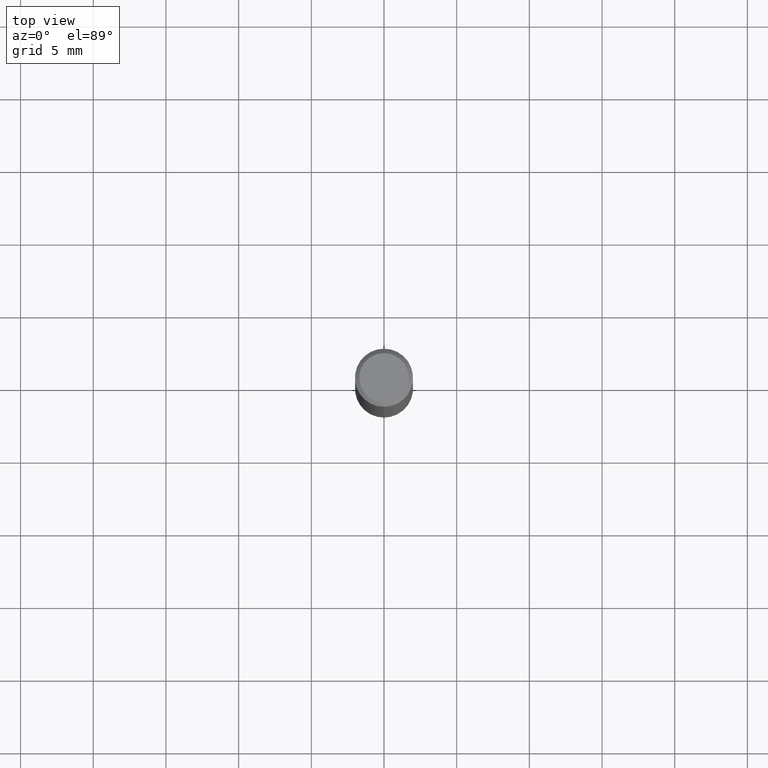
[diagram: clean part render]
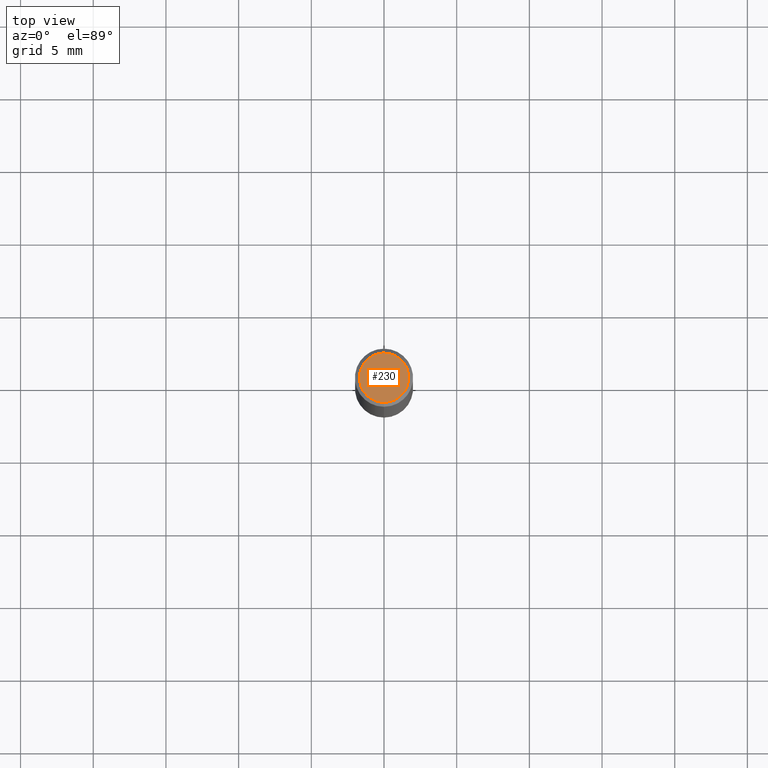
[diagram: same view with one face highlighted and labeled with its STEP entity id]
A machine part, top view. The second image highlights one B-rep face of the part: STEP entity #230.
In plain terms, the highlighted planar face has unit normal (-0, 0, 1).
Its self-contained STEP definition (entity closure, byte-faithful):
#116=EDGE_CURVE('',#166,#144,#272,.T.);
#122=EDGE_CURVE('',#144,#166,#279,.T.);
#144=VERTEX_POINT('',#304);
#166=VERTEX_POINT('',#330);
#230=ADVANCED_FACE('',(#400),#401,.T.);
#272=CIRCLE('',#440,1.7);
#279=CIRCLE('',#450,1.7);
#304=CARTESIAN_POINT('',(0.0,1.7,0.0));
#330=CARTESIAN_POINT('',(2.08183080149804E-016,-1.7,0.0));
#400=FACE_OUTER_BOUND('',#599,.T.);
#401=PLANE('',#600);
#440=AXIS2_PLACEMENT_3D('',#635,#636,#637);
#450=AXIS2_PLACEMENT_3D('',#645,#646,#647);
#599=EDGE_LOOP('',(#800,#801));
#600=AXIS2_PLACEMENT_3D('',#802,#803,#804);
#635=CARTESIAN_POINT('',(0.0,0.0,0.0));
#636=DIRECTION('',(0.0,0.0,-1.0));
#637=DIRECTION('',(0.0,1.0,0.0));
#645=CARTESIAN_POINT('',(0.0,0.0,0.0));
#646=DIRECTION('',(0.0,0.0,-1.0));
#647=DIRECTION('',(0.0,1.0,0.0));
#800=ORIENTED_EDGE('',*,*,#122,.F.);
#801=ORIENTED_EDGE('',*,*,#116,.F.);
#802=CARTESIAN_POINT('',(0.0,0.85,0.0));
#803=DIRECTION('',(-0.0,0.0,1.0));
#804=DIRECTION('',(0.0,-1.0,0.0));